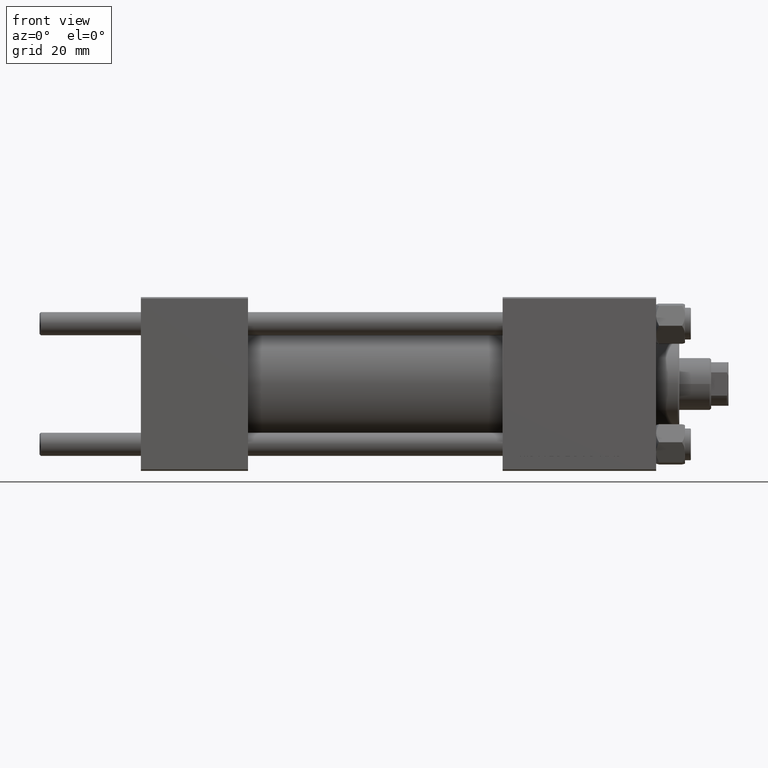
[diagram: clean part render]
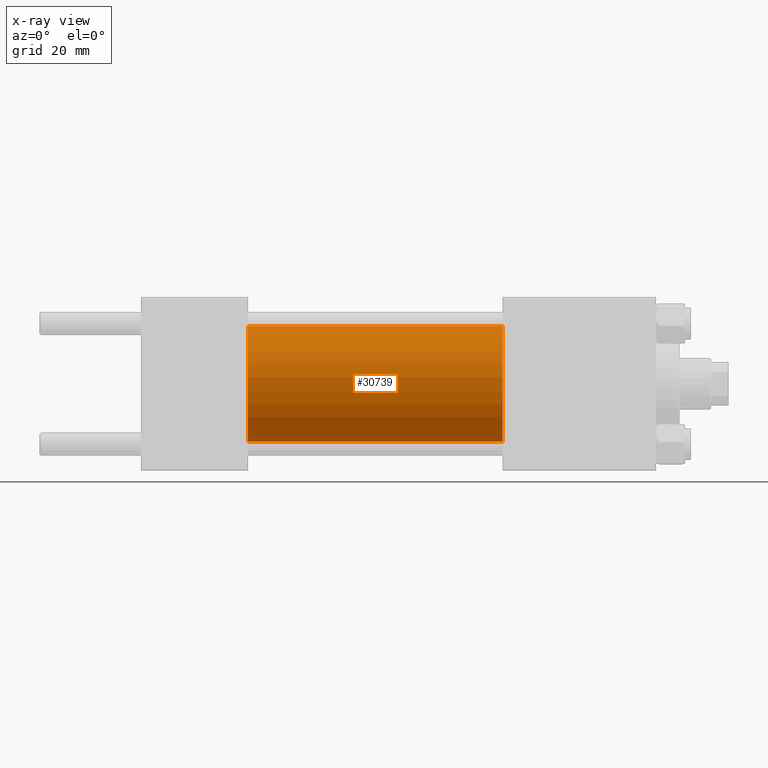
[diagram: x-ray — body ghosted, one internal face saturated and labeled with its STEP entity id]
A machine part, front view, then the same camera in x-ray: the body is ghosted and one INTERNAL B-rep face — a face not visible from any outside direction — is saturated and labeled: STEP entity #30739.
In plain terms, the highlighted cylindrical surface (partial cylindrical patch) has radius 20 mm, axis along (-1, -0, -0).
Its self-contained STEP definition (entity closure, byte-faithful):
#650 = CIRCLE ( 'NONE', #45109, 20.00000000000000000 ) ;
#3014 = VERTEX_POINT ( 'NONE', #15545 ) ;
#4066 = ORIENTED_EDGE ( 'NONE', *, *, #19563, .F. ) ;
#4207 = VERTEX_POINT ( 'NONE', #22359 ) ;
#6925 = EDGE_CURVE ( 'NONE', #26212, #3014, #33908, .T. ) ;
#9675 = DIRECTION ( 'NONE',  ( 1.000000000000000000, 0.000000000000000000, 0.000000000000000000 ) ) ;
#10204 = DIRECTION ( 'NONE',  ( 0.000000000000000000, 0.000000000000000000, 1.000000000000000000 ) ) ;
#10496 = EDGE_CURVE ( 'NONE', #17308, #3014, #14813, .T. ) ;
#11603 = AXIS2_PLACEMENT_3D ( 'NONE', #15758, #46629, #15999 ) ;
#13104 = VECTOR ( 'NONE', #26064, 1000.000000000000000 ) ;
#14813 = CIRCLE ( 'NONE', #11603, 20.00000000000000000 ) ;
#15545 = CARTESIAN_POINT ( 'NONE',  ( 37.00000000000000000, 2.449293598294706513E-15, -20.00000000000000000 ) ) ;
#15758 = CARTESIAN_POINT ( 'NONE',  ( 37.00000000000000000, 0.000000000000000000, 0.000000000000000000 ) ) ;
#15999 = DIRECTION ( 'NONE',  ( 0.000000000000000000, 0.000000000000000000, -1.000000000000000000 ) ) ;
#17308 = VERTEX_POINT ( 'NONE', #19400 ) ;
#17546 = FACE_OUTER_BOUND ( 'NONE', #36231, .T. ) ;
#19400 = CARTESIAN_POINT ( 'NONE',  ( 37.00000000000000000, 0.000000000000000000, 20.00000000000000000 ) ) ;
#19563 = EDGE_CURVE ( 'NONE', #4207, #17308, #43784, .T. ) ;
#21793 = DIRECTION ( 'NONE',  ( 0.000000000000000000, 0.000000000000000000, -1.000000000000000000 ) ) ;
#22359 = CARTESIAN_POINT ( 'NONE',  ( 125.0000000000000000, 0.000000000000000000, 20.00000000000000000 ) ) ;
#24550 = DIRECTION ( 'NONE',  ( -1.000000000000000000, -0.000000000000000000, -0.000000000000000000 ) ) ;
#26064 = DIRECTION ( 'NONE',  ( -1.000000000000000000, -0.000000000000000000, -0.000000000000000000 ) ) ;
#26212 = VERTEX_POINT ( 'NONE', #27724 ) ;
#27724 = CARTESIAN_POINT ( 'NONE',  ( 125.0000000000000000, 2.449293598294706513E-15, -20.00000000000000000 ) ) ;
#28705 = ORIENTED_EDGE ( 'NONE', *, *, #48202, .T. ) ;
#28912 = CARTESIAN_POINT ( 'NONE',  ( 125.0000000000000000, 0.000000000000000000, 0.000000000000000000 ) ) ;
#30102 = CARTESIAN_POINT ( 'NONE',  ( 125.0000000000000000, 2.449293598294706513E-15, -20.00000000000000000 ) ) ;
#30739 = ADVANCED_FACE ( 'NONE', ( #17546 ), #33231, .F. ) ;
#33231 = CYLINDRICAL_SURFACE ( 'NONE', #34986, 20.00000000000000000 ) ;
#33908 = LINE ( 'NONE', #30102, #13104 ) ;
#34986 = AXIS2_PLACEMENT_3D ( 'NONE', #40833, #41081, #10204 ) ;
#36231 = EDGE_LOOP ( 'NONE', ( #28705, #41782, #41220, #4066 ) ) ;
#40833 = CARTESIAN_POINT ( 'NONE',  ( 125.0000000000000000, 0.000000000000000000, 0.000000000000000000 ) ) ;
#41081 = DIRECTION ( 'NONE',  ( -1.000000000000000000, -0.000000000000000000, -0.000000000000000000 ) ) ;
#41220 = ORIENTED_EDGE ( 'NONE', *, *, #10496, .F. ) ;
#41782 = ORIENTED_EDGE ( 'NONE', *, *, #6925, .T. ) ;
#43299 = CARTESIAN_POINT ( 'NONE',  ( 125.0000000000000000, 0.000000000000000000, 20.00000000000000000 ) ) ;
#43784 = LINE ( 'NONE', #43299, #48929 ) ;
#45109 = AXIS2_PLACEMENT_3D ( 'NONE', #28912, #9675, #21793 ) ;
#46629 = DIRECTION ( 'NONE',  ( 1.000000000000000000, 0.000000000000000000, 0.000000000000000000 ) ) ;
#48202 = EDGE_CURVE ( 'NONE', #4207, #26212, #650, .T. ) ;
#48929 = VECTOR ( 'NONE', #24550, 1000.000000000000000 ) ;